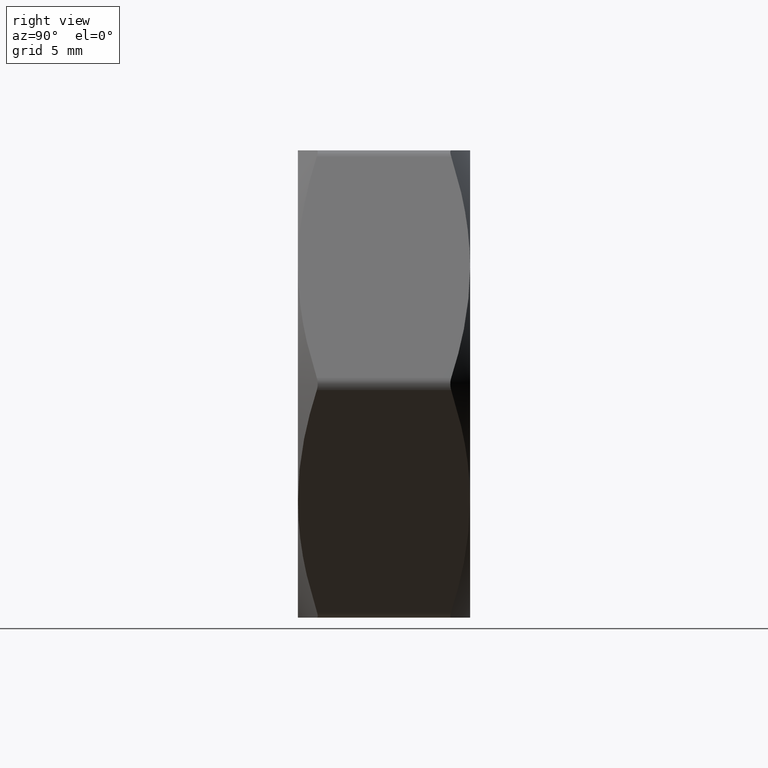
[diagram: clean part render]
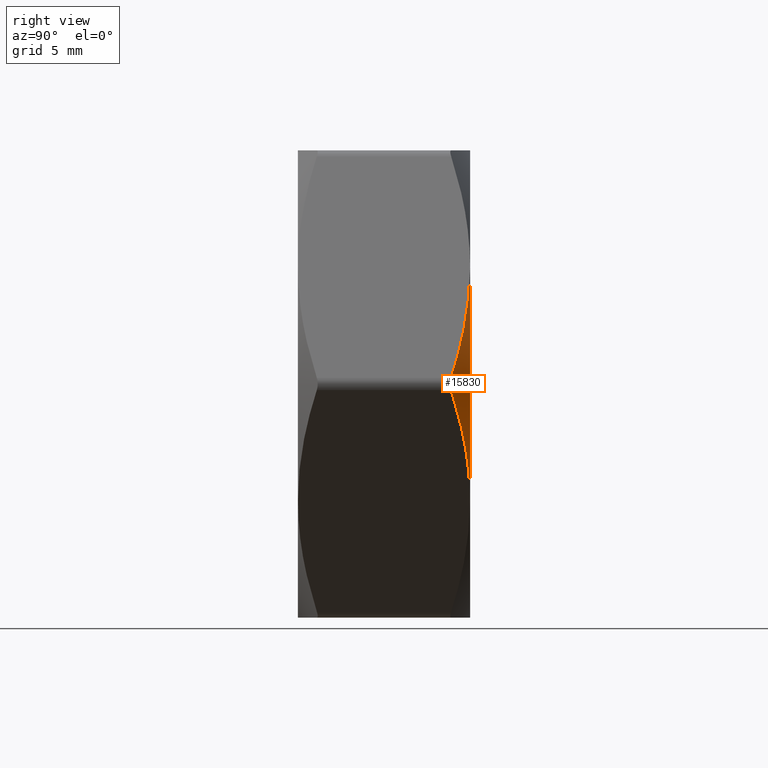
[diagram: same view with one face highlighted and labeled with its STEP entity id]
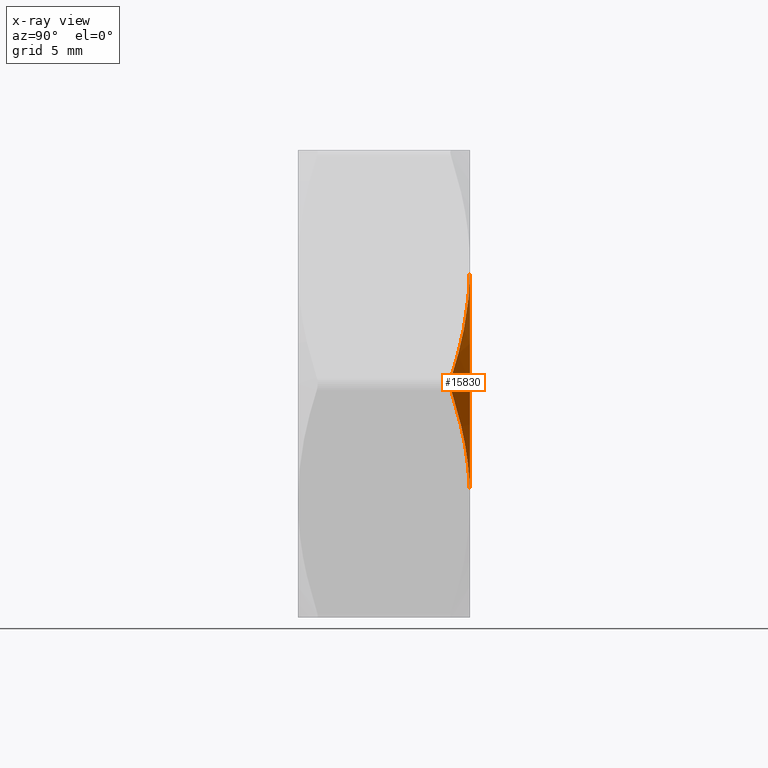
[diagram: x-ray of the same camera — body ghosted, the highlighted face saturated]
A machine part, right view. The second image highlights one B-rep face of the part: STEP entity #15830.
The next image is the same camera in x-ray: the body ghosted, the highlighted face saturated — about 0% of this face is hidden behind the body in this view.
In plain terms, the highlighted conical surface has half-angle 60 deg.
Its self-contained STEP definition (entity closure, byte-faithful):
#180 = VERTEX_POINT ( 'NONE', #13885 ) ;
#781 = EDGE_LOOP ( 'NONE', ( #9047, #10674, #13357, #15466 ) ) ;
#904 = CARTESIAN_POINT ( 'NONE',  ( 9.106704621436115600, 3.412405536657729100, -3.226724906150326300 ) ) ;
#921 = DIRECTION ( 'NONE',  ( 1.000000000000000000, 0.0000000000000000000, 0.0000000000000000000 ) ) ;
#1358 = CARTESIAN_POINT ( 'NONE',  ( 10.89238375193495000, 2.696108957237656000, -0.08764487288724152900 ) ) ;
#1637 = CARTESIAN_POINT ( 'NONE',  ( 10.82531754730597500, 2.733161112797500200, 0.2499999999991383800 ) ) ;
#3011 = CARTESIAN_POINT ( 'NONE',  ( 8.227241335952168600, 3.500000000000000000, -4.750000000000002700 ) ) ;
#3313 = CARTESIAN_POINT ( 'NONE',  ( 9.106430400612966400, 3.427662757294319500, 3.227199870548520500 ) ) ;
#3437 = FACE_OUTER_BOUND ( 'NONE', #781, .T. ) ;
#4764 = EDGE_CURVE ( 'NONE', #13647, #180, #10246, .T. ) ;
#5245 = CARTESIAN_POINT ( 'NONE',  ( 10.82531754730547700, 2.733161112797775500, -0.2499999999999995800 ) ) ;
#5795 = CARTESIAN_POINT ( 'NONE',  ( 9.971711193546212800, 3.161682687220365800, 1.728489574374660000 ) ) ;
#6011 = CARTESIAN_POINT ( 'NONE',  ( 8.668755713662402900, 3.482053147081709500, -3.985274665533705000 ) ) ;
#6108 = CARTESIAN_POINT ( 'NONE',  ( 3.931690912932538000E-017, 3.500000000000000000, 1.848398285660946700E-016 ) ) ;
#6228 = DIRECTION ( 'NONE',  ( 8.881784197001252300E-016, 0.0000000000000000000, 1.000000000000000000 ) ) ;
#6327 = VERTEX_POINT ( 'NONE', #13458 ) ;
#7591 = CARTESIAN_POINT ( 'NONE',  ( 8.227241335952168600, 3.500000000000000000, -4.750000000000002700 ) ) ;
#7935 = CARTESIAN_POINT ( 'NONE',  ( 10.89222553569159900, 2.696196110277377900, 0.08854287053725087800 ) ) ;
#8136 = EDGE_CURVE ( 'NONE', #9384, #180, #14369, .T. ) ;
#8229 = CARTESIAN_POINT ( 'NONE',  ( 8.669433656285479000, 3.500000000000008900, 3.984100434465925200 ) ) ;
#8470 = CARTESIAN_POINT ( 'NONE',  ( 3.931690912932538000E-017, 3.500000000000000000, 0.0000000000000000000 ) ) ;
#8505 = CARTESIAN_POINT ( 'NONE',  ( 9.973320679115390800, 3.161040693212943300, -1.725701863594798300 ) ) ;
#8617 = CARTESIAN_POINT ( 'NONE',  ( 10.82531754730547700, 2.733161112797775500, -0.2499999999999995800 ) ) ;
#9047 = ORIENTED_EDGE ( 'NONE', *, *, #16095, .F. ) ;
#9080 = CARTESIAN_POINT ( 'NONE',  ( 10.82531754730597500, 2.733161112797500200, 0.2499999999991383800 ) ) ;
#9384 = VERTEX_POINT ( 'NONE', #7591 ) ;
#9838 = AXIS2_PLACEMENT_3D ( 'NONE', #6108, #15206, #6228 ) ;
#9974 = CARTESIAN_POINT ( 'NONE',  ( 8.447481077618247600, 3.500000000000008900, -4.368533577588494600 ) ) ;
#10246 = B_SPLINE_CURVE_WITH_KNOTS ( 'NONE', 3,
 ( #9080, #15721, #7935, #1358, #11649, #5245 ),
 .UNSPECIFIED., .F., .F.,
 ( 4, 2, 4 ),
 ( 9.639170801074422900E-016, 0.0002637781458279583700, 0.0005275562916549528900 ),
 .UNSPECIFIED. ) ;
#10327 = B_SPLINE_CURVE_WITH_KNOTS ( 'NONE', 3,
 ( #1637, #16176, #5795, #3313, #8229, #13339 ),
 .UNSPECIFIED., .F., .F.,
 ( 4, 2, 4 ),
 ( 0.0002975922718325330000, 0.002923788827799089800, 0.005549985383765647200 ),
 .UNSPECIFIED. ) ;
#10583 = CIRCLE ( 'NONE', #9838, 9.500000000000001800 ) ;
#10674 = ORIENTED_EDGE ( 'NONE', *, *, #4764, .T. ) ;
#10752 = EDGE_CURVE ( 'NONE', #9384, #6327, #10583, .T. ) ;
#11129 = AXIS2_PLACEMENT_3D ( 'NONE', #8470, #13635, #921 ) ;
#11649 = CARTESIAN_POINT ( 'NONE',  ( 10.86826663802246500, 2.709362655883584400, -0.1756099927392926200 ) ) ;
#13339 = CARTESIAN_POINT ( 'NONE',  ( 8.227241335952170300, 3.500000000000000000, 4.749999999999999100 ) ) ;
#13357 = ORIENTED_EDGE ( 'NONE', *, *, #8136, .F. ) ;
#13401 = CARTESIAN_POINT ( 'NONE',  ( 10.82531754730597500, 2.733161112797500200, 0.2499999999991383800 ) ) ;
#13458 = CARTESIAN_POINT ( 'NONE',  ( 8.227241335952170300, 3.500000000000000000, 4.749999999999999100 ) ) ;
#13635 = DIRECTION ( 'NONE',  ( -1.123340260837868000E-017, -1.000000000000000000, -0.0000000000000000000 ) ) ;
#13647 = VERTEX_POINT ( 'NONE', #13401 ) ;
#13885 = CARTESIAN_POINT ( 'NONE',  ( 10.82531754730547700, 2.733161112797775500, -0.2499999999999995800 ) ) ;
#14369 = B_SPLINE_CURVE_WITH_KNOTS ( 'NONE', 3,
 ( #3011, #9974, #6011, #904, #15048, #8505, #16339, #8617 ),
 .UNSPECIFIED., .F., .F.,
 ( 4, 2, 2, 4 ),
 ( 0.005549985383765653300, 0.006857997360578058100, 0.008166009337390462900, 0.01078203329101527400 ),
 .UNSPECIFIED. ) ;
#14519 = CONICAL_SURFACE ( 'NONE', #11129, 9.500000000000001800, 1.047197551196604100 ) ;
#15048 = CARTESIAN_POINT ( 'NONE',  ( 9.324286606578478900, 3.360768812073043700, -2.849861853072070100 ) ) ;
#15206 = DIRECTION ( 'NONE',  ( -0.0000000000000000000, -1.000000000000000000, -0.0000000000000000000 ) ) ;
#15466 = ORIENTED_EDGE ( 'NONE', *, *, #10752, .T. ) ;
#15721 = CARTESIAN_POINT ( 'NONE',  ( 10.86825100933161700, 2.709371315873999400, 0.1756370624258956300 ) ) ;
#15830 = ADVANCED_FACE ( 'NONE', ( #3437 ), #14519, .T. ) ;
#16095 = EDGE_CURVE ( 'NONE', #13647, #6327, #10327, .T. ) ;
#16176 = CARTESIAN_POINT ( 'NONE',  ( 10.40005022359209600, 2.968805358379080800, 0.9865846114704189800 ) ) ;
#16339 = CARTESIAN_POINT ( 'NONE',  ( 10.40106991011710800, 2.968240341392045500, -0.9848184626013102300 ) ) ;